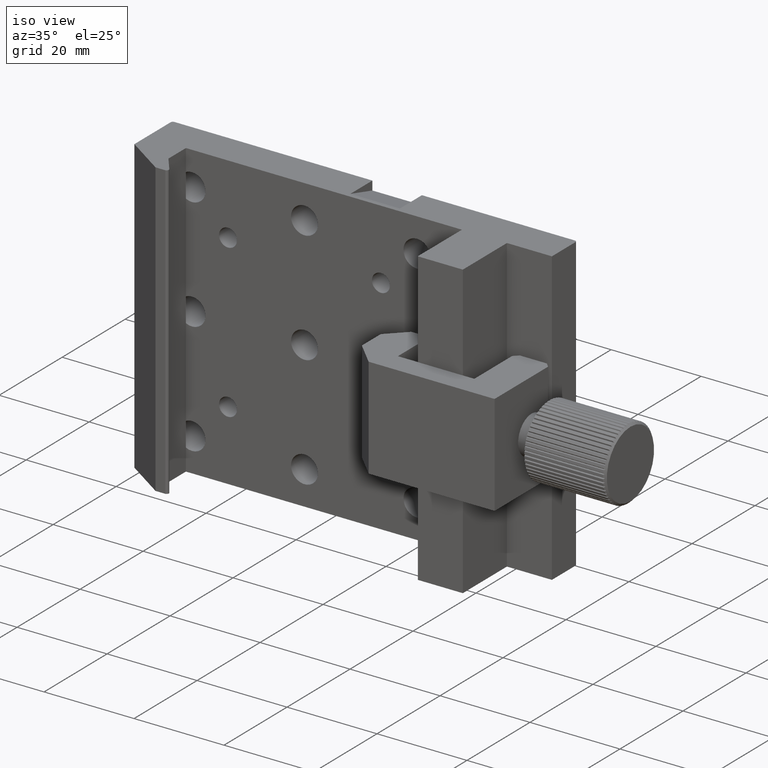
[diagram: clean part render]
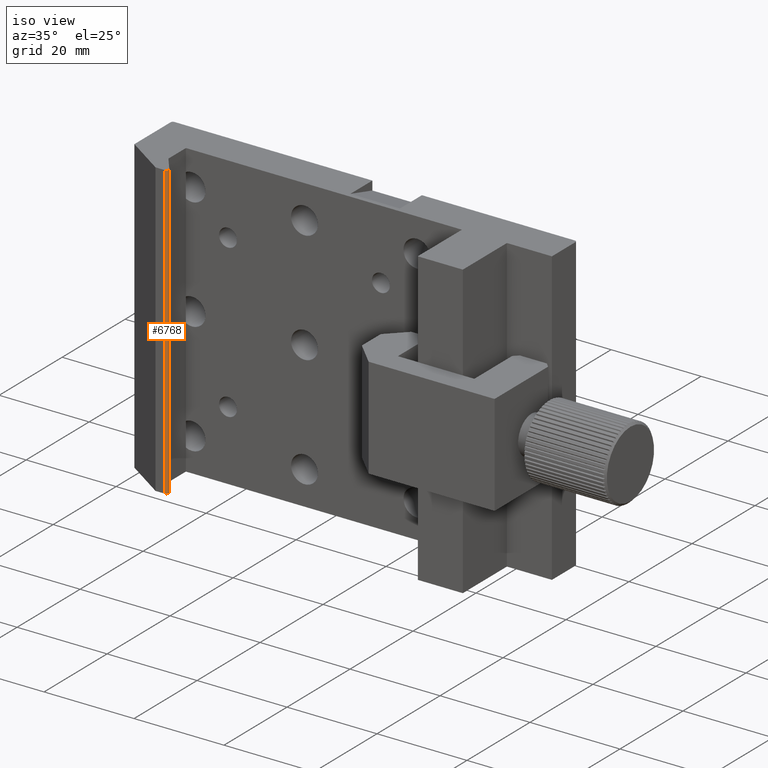
[diagram: same view with one face highlighted and labeled with its STEP entity id]
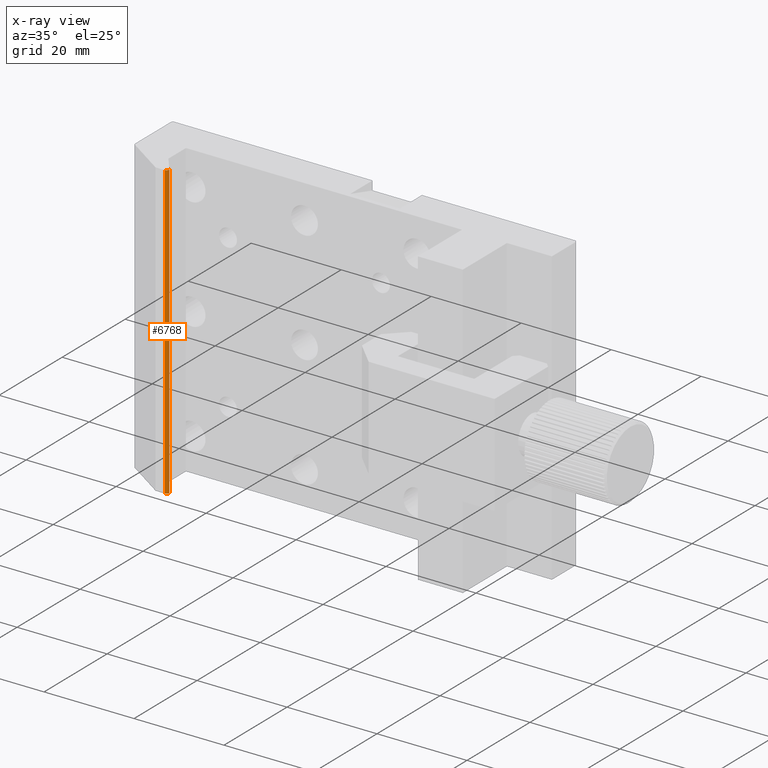
[diagram: x-ray of the same camera — body ghosted, the highlighted face saturated]
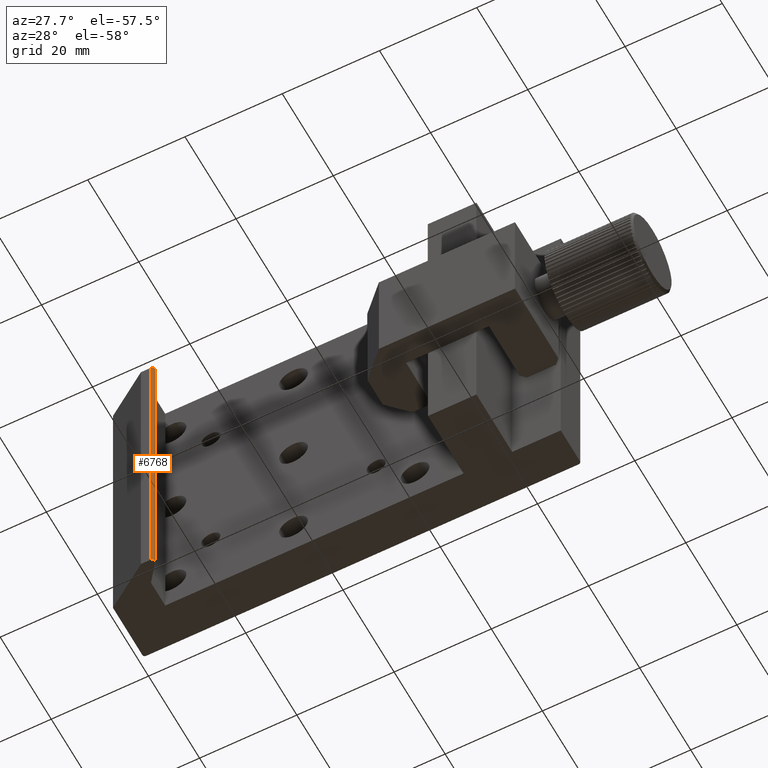
[diagram: same view with one face highlighted and labeled with its STEP entity id]
A machine part, iso view. The second image highlights one B-rep face of the part: STEP entity #6768.
The next image is the same camera in x-ray: the body ghosted, the highlighted face saturated — about 0% of this face is hidden behind the body in this view.
A second angle (auxiliary view) of the same face is appended — the face is thin or edge-on in the first view.
In plain terms, the highlighted cylindrical surface (edge-blend (fillet) strip) has radius 0.5 mm, axis along (-0, -0, -1).
Its self-contained STEP definition (entity closure, byte-faithful):
#719 = EDGE_LOOP ( 'NONE', ( #6671, #6670, #6669, #6668 ) ) ;
#1159 = CARTESIAN_POINT ( 'NONE',  ( -68.47252651145957700, -0.4404695730432228700, -32.50000000000000000 ) ) ;
#1160 = DIRECTION ( 'NONE',  ( 0.0000000000000000000, 0.0000000000000000000, 1.000000000000000000 ) ) ;
#1161 = DIRECTION ( 'NONE',  ( 1.000000000000000000, 0.0000000000000000000, 0.0000000000000000000 ) ) ;
#1164 = CARTESIAN_POINT ( 'NONE',  ( -68.47252651145957700, -0.4404695730432228700, 32.50000000000000000 ) ) ;
#1165 = DIRECTION ( 'NONE',  ( 0.0000000000000000000, 0.0000000000000000000, 1.000000000000000000 ) ) ;
#1166 = DIRECTION ( 'NONE',  ( 1.000000000000000000, 0.0000000000000000000, 0.0000000000000000000 ) ) ;
#2498 = EDGE_CURVE ( 'NONE', #5937, #5943, #4581, .T. ) ;
#2499 = EDGE_CURVE ( 'NONE', #5938, #5943, #4583, .T. ) ;
#2500 = EDGE_CURVE ( 'NONE', #5934, #5937, #4579, .T. ) ;
#2501 = EDGE_CURVE ( 'NONE', #5934, #5938, #4586, .T. ) ;
#4135 = FACE_OUTER_BOUND ( 'NONE', #719, .T. ) ;
#4155 = CYLINDRICAL_SURFACE ( 'NONE', #5191, 0.5000000000000004400 ) ;
#4579 = CIRCLE ( 'NONE', #7172, 0.5000000000000004400 ) ;
#4581 = LINE ( 'NONE', #7073, #4584 ) ;
#4583 = CIRCLE ( 'NONE', #7171, 0.5000000000000004400 ) ;
#4584 = VECTOR ( 'NONE', #7074, 1000.000000000000000 ) ;
#4586 = LINE ( 'NONE', #7076, #4588 ) ;
#4588 = VECTOR ( 'NONE', #7075, 1000.000000000000000 ) ;
#4907 = CARTESIAN_POINT ( 'NONE',  ( -68.47252651145957700, -0.9404695730432233200, 32.50000000000000000 ) ) ;
#4910 = CARTESIAN_POINT ( 'NONE',  ( -68.07320875643593200, -0.1395620614671917700, 32.50000000000000000 ) ) ;
#4911 = CARTESIAN_POINT ( 'NONE',  ( -68.47252651145957700, -0.9404695730432233200, -32.50000000000000000 ) ) ;
#4916 = CARTESIAN_POINT ( 'NONE',  ( -68.07320875643593200, -0.1395620614671917700, -32.50000000000000000 ) ) ;
#5129 = DIRECTION ( 'NONE',  ( -1.000000000000000000, 0.0000000000000000000, 0.0000000000000000000 ) ) ;
#5137 = DIRECTION ( 'NONE',  ( -0.0000000000000000000, -0.0000000000000000000, -1.000000000000000000 ) ) ;
#5138 = CARTESIAN_POINT ( 'NONE',  ( -68.47252651145957700, -0.4404695730432228700, 32.50000000000000000 ) ) ;
#5191 = AXIS2_PLACEMENT_3D ( 'NONE', #5138, #5137, #5129 ) ;
#5934 = VERTEX_POINT ( 'NONE', #4907 ) ;
#5937 = VERTEX_POINT ( 'NONE', #4910 ) ;
#5938 = VERTEX_POINT ( 'NONE', #4911 ) ;
#5943 = VERTEX_POINT ( 'NONE', #4916 ) ;
#6668 = ORIENTED_EDGE ( 'NONE', *, *, #2501, .T. ) ;
#6669 = ORIENTED_EDGE ( 'NONE', *, *, #2500, .F. ) ;
#6670 = ORIENTED_EDGE ( 'NONE', *, *, #2498, .F. ) ;
#6671 = ORIENTED_EDGE ( 'NONE', *, *, #2499, .T. ) ;
#6768 = ADVANCED_FACE ( 'NONE', ( #4135 ), #4155, .T. ) ;
#7073 = CARTESIAN_POINT ( 'NONE',  ( -68.07320875643593200, -0.1395620614671917700, 32.50000000000000000 ) ) ;
#7074 = DIRECTION ( 'NONE',  ( -0.0000000000000000000, -0.0000000000000000000, -1.000000000000000000 ) ) ;
#7075 = DIRECTION ( 'NONE',  ( -0.0000000000000000000, -0.0000000000000000000, -1.000000000000000000 ) ) ;
#7076 = CARTESIAN_POINT ( 'NONE',  ( -68.47252651145957700, -0.9404695730432233200, 32.50000000000000000 ) ) ;
#7171 = AXIS2_PLACEMENT_3D ( 'NONE', #1159, #1160, #1161 ) ;
#7172 = AXIS2_PLACEMENT_3D ( 'NONE', #1164, #1165, #1166 ) ;